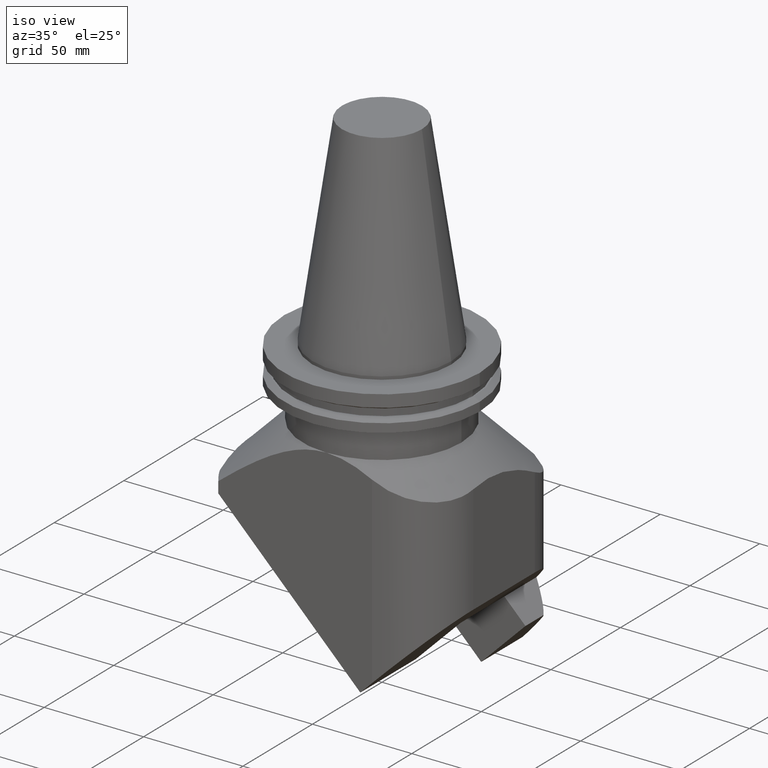
[diagram: clean part render]
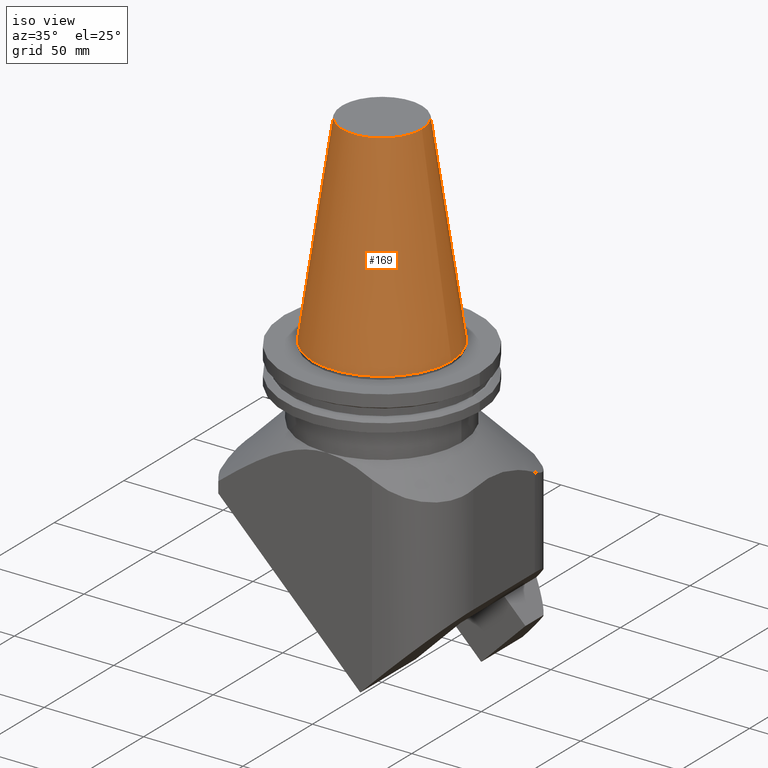
[diagram: tour spotlight — one face highlighted and labeled with its STEP entity id]
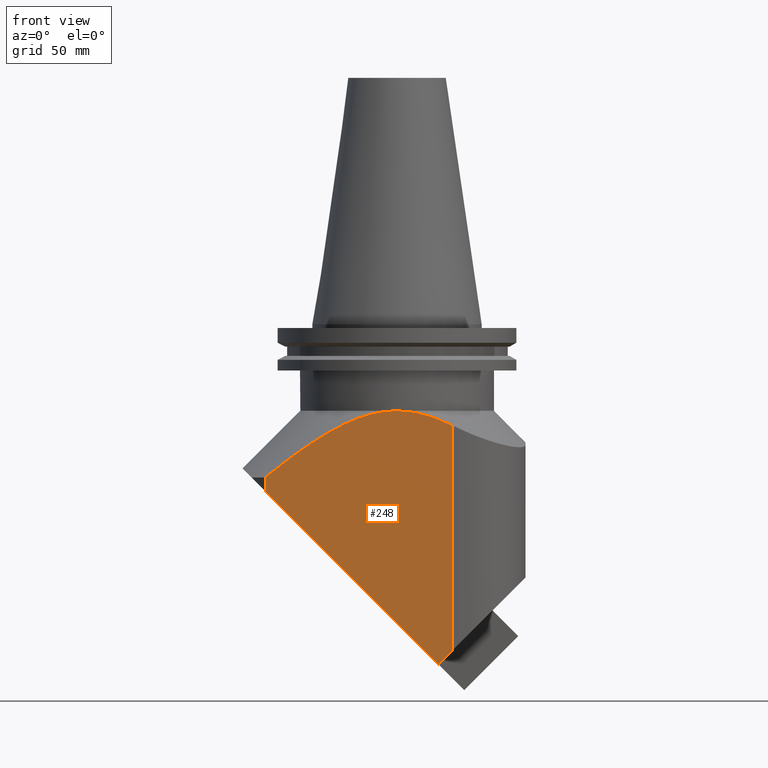
[diagram: tour spotlight — one face highlighted and labeled with its STEP entity id]
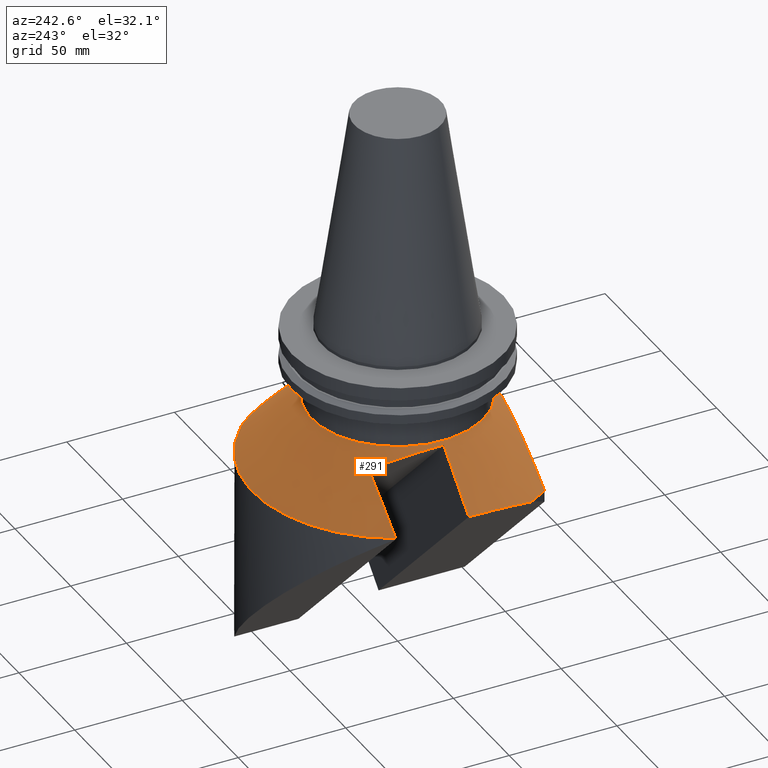
[diagram: tour spotlight — one face highlighted and labeled with its STEP entity id]
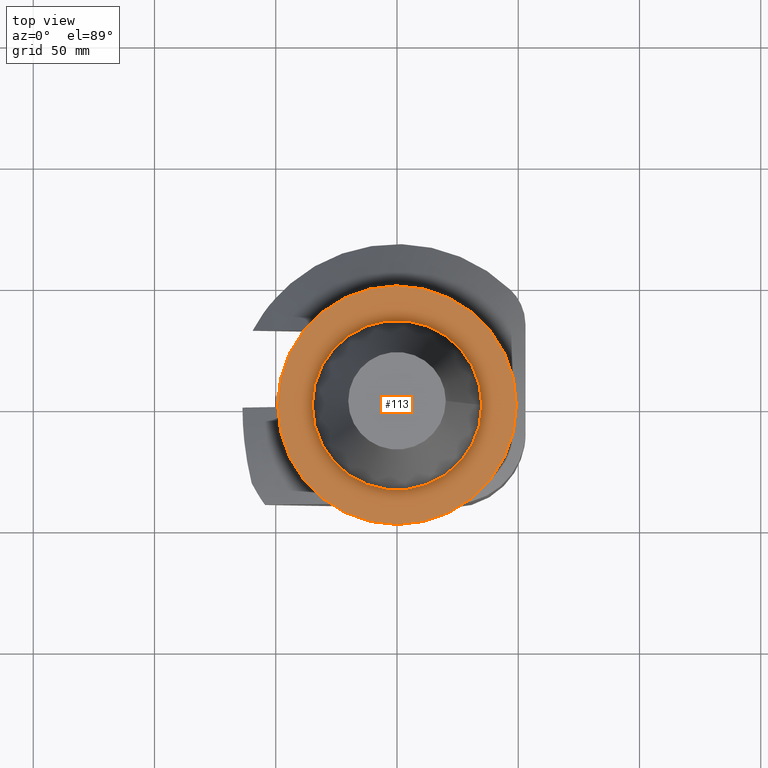
[diagram: tour spotlight — one face highlighted and labeled with its STEP entity id]
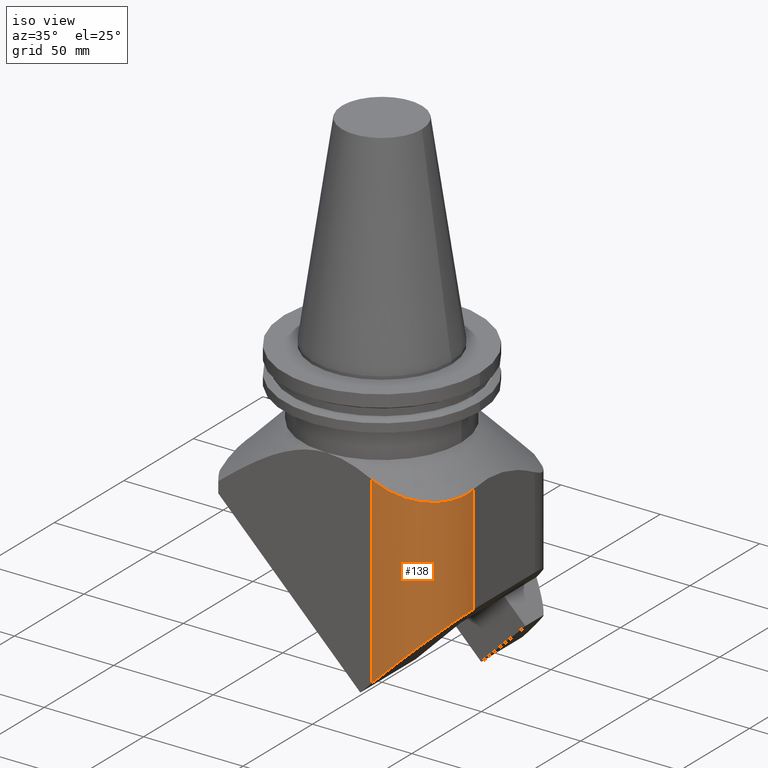
[diagram: tour spotlight — one face highlighted and labeled with its STEP entity id]
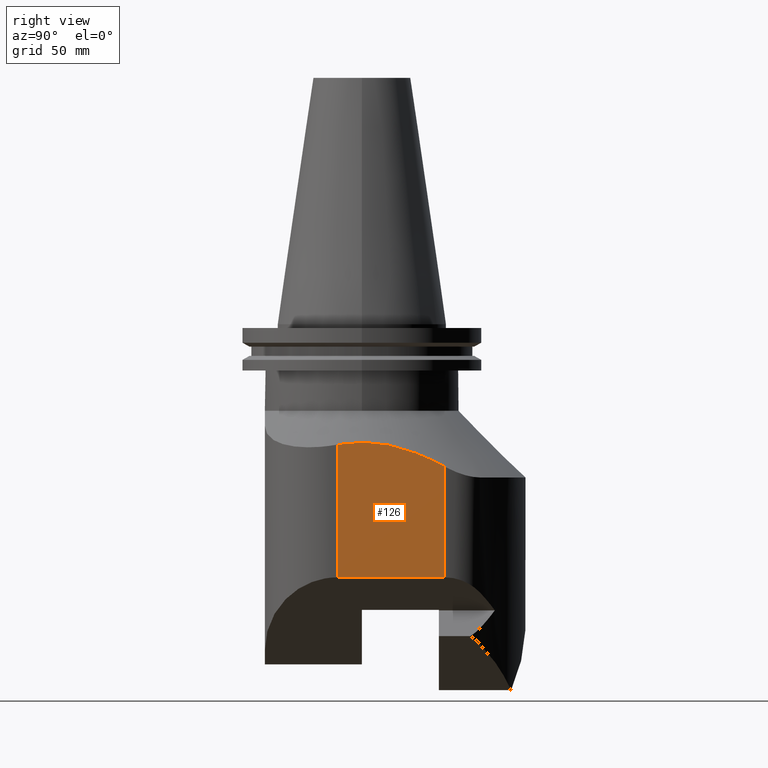
[diagram: tour spotlight — one face highlighted and labeled with its STEP entity id]
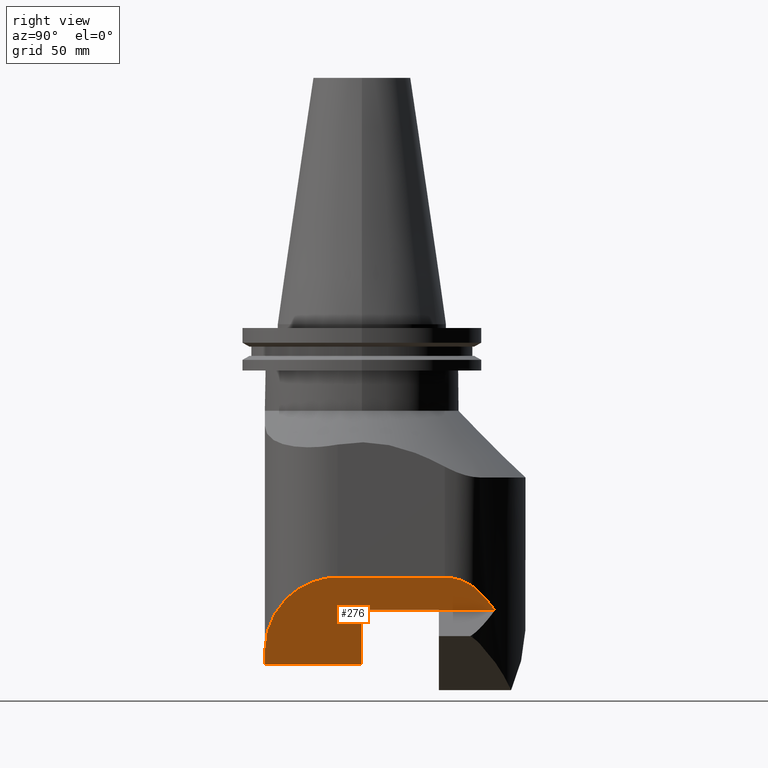
[diagram: tour spotlight — one face highlighted and labeled with its STEP entity id]
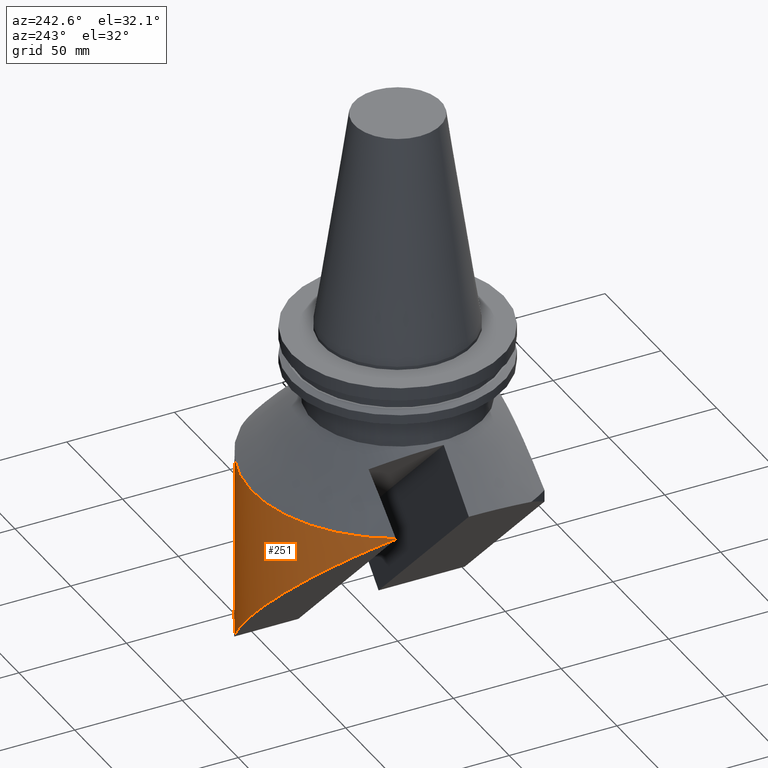
[diagram: tour spotlight — one face highlighted and labeled with its STEP entity id]
A machine part: a face-by-face anatomy tour. The part has 29 B-rep faces; the first image is the clean iso view, then the 8 largest visible faces are spotlighted one at a time (largest first), each with its STEP entity span.

Face 1 — iso view, entity #169. In plain terms, the highlighted conical surface has half-angle 8.297 deg.
Definition (entity closure, byte-faithful):
#169=ADVANCED_FACE('Unnamed[1]',(#422,#423),#424,.T.);
#198=EDGE_CURVE('Unnamed[1]',#464,#464,#465,.T.);
#225=EDGE_CURVE('Unnamed[1]',#501,#501,#502,.T.);
#422=FACE_BOUND('',#779,.T.);
#423=FACE_BOUND('',#780,.T.);
#424=CONICAL_SURFACE('',#781,27.5166666648608,0.144812498273746);
#464=VERTEX_POINT('',#840);
#465=CIRCLE('',#841,20.1083333297217);
#501=VERTEX_POINT('',#893);
#502=CIRCLE('',#894,34.925);
#779=EDGE_LOOP('',(#1192));
#780=EDGE_LOOP('',(#1193));
#781=AXIS2_PLACEMENT_3D('',#1194,#1195,#1196);
#840=CARTESIAN_POINT('',(20.1083333297217,1.36298380005854E-014,101.6));
#841=AXIS2_PLACEMENT_3D('',#1236,#1237,#1238);
#893=CARTESIAN_POINT('',(34.925,-1.55098156540134E-014,4.27707894602213E-015));
#894=AXIS2_PLACEMENT_3D('',#1278,#1279,#1280);
#1192=ORIENTED_EDGE('',*,*,#225,.F.);
#1193=ORIENTED_EDGE('',*,*,#198,.T.);
#1194=CARTESIAN_POINT('',(-6.22120573966854E-015,1.12798659301916E-014,50.8));
#1195=DIRECTION('',(1.22464679914735E-016,-2.22044604925031E-016,-1.0));
#1196=DIRECTION('',(1.0,-4.44089209850063E-016,1.22464679914735E-016));
#1236=CARTESIAN_POINT('',(-1.24424114793371E-014,2.25597318603832E-014,101.6));
#1237=DIRECTION('',(1.22464679914735E-016,-2.22044604925031E-016,-1.0));
#1238=DIRECTION('',(1.0,-4.44089209850063E-016,1.22464679914735E-016));
#1278=CARTESIAN_POINT('',(0.0,0.0,0.0));
#1279=DIRECTION('',(1.22464679914735E-016,-2.22044604925031E-016,-1.0));
#1280=DIRECTION('',(1.0,-4.44089209850063E-016,1.22464679914735E-016));

Face 2 — front view, entity #248. In plain terms, the highlighted planar face has unit normal (-0, 1, -0).
Definition (entity closure, byte-faithful):
#161=EDGE_CURVE('Unnamed[1]',#404,#411,#412,.T.);
#200=EDGE_CURVE('Unnamed[1]',#426,#467,#468,.T.);
#208=EDGE_CURVE('Unnamed[1]',#479,#404,#480,.T.);
#241=EDGE_CURVE('Unnamed[1]',#479,#426,#524,.T.);
#243=EDGE_CURVE('Unnamed[1]',#467,#328,#526,.T.);
#248=ADVANCED_FACE('Unnamed[1]',(#532),#533,.F.);
#310=EDGE_CURVE('Unnamed[1]',#411,#328,#610,.T.);
#328=VERTEX_POINT('',#619);
#404=VERTEX_POINT('',#744);
#411=VERTEX_POINT('',#753);
#412=(B_SPLINE_CURVE(2,(#755,#756,#757,#758,#759),.UNSPECIFIED.,.F.,.F.)B_SPLINE_CURVE_WITH_KNOTS((3,2,3),(0.0,61.7520881841172,123.504176368234),.UNSPECIFIED.)RATIONAL_B_SPLINE_CURVE((1.0,1.15920231193658,1.0,1.15920231193658,1.0))BOUNDED_CURVE()REPRESENTATION_ITEM('')GEOMETRIC_REPRESENTATION_ITEM()CURVE());
#426=VERTEX_POINT('',#784);
#467=VERTEX_POINT('',#844);
#468=LINE('',#845,#846);
#479=VERTEX_POINT('',#860);
#480=LINE('',#861,#862);
#524=LINE('',#932,#933);
#526=LINE('',#936,#937);
#532=FACE_OUTER_BOUND('',#945,.T.);
#533=PLANE('',#946);
#610=(B_SPLINE_CURVE(2,(#1087,#1088,#1089,#1090,#1091),.UNSPECIFIED.,.F.,.F.)B_SPLINE_CURVE_WITH_KNOTS((3,2,3),(0.0,61.7520881841172,123.504176368234),.UNSPECIFIED.)RATIONAL_B_SPLINE_CURVE((1.0,1.15920231193658,1.0,1.15920231193658,1.0))BOUNDED_CURVE()REPRESENTATION_ITEM('')GEOMETRIC_REPRESENTATION_ITEM()CURVE());
#619=CARTESIAN_POINT('',(22.9999999999964,-40.0000000000012,-41.7911103010472));
#744=CARTESIAN_POINT('',(-54.3714079273313,-40.0000000000015,-63.1500223208141));
#753=CARTESIAN_POINT('',(1.33151739428989E-013,-40.0000000000013,-35.6500223208098));
#755=CARTESIAN_POINT('',(-54.3714079273285,-40.0000000000015,-63.1500223208119));
#756=CARTESIAN_POINT('',(-20.2312215543526,-40.0000000000014,-35.6500223208098));
#757=CARTESIAN_POINT('',(1.33668122231138E-013,-40.0000000000013,-35.6500223208098));
#758=CARTESIAN_POINT('',(20.2312215543529,-40.0000000000012,-35.6500223208098));
#759=CARTESIAN_POINT('',(54.3714079273287,-40.0000000000011,-63.1500223208119));
#784=CARTESIAN_POINT('',(17.1119841047162,-40.0,-140.227735178066));
#844=CARTESIAN_POINT('',(22.999999999996,-40.0,-134.339719282784));
#845=CARTESIAN_POINT('',(-23.6354055024403,-40.0,-180.975124785233));
#846=VECTOR('',#1239,1.0);
#860=CARTESIAN_POINT('',(-54.3714079273291,-40.0000000000015,-68.744343146019));
#861=CARTESIAN_POINT('',(-54.3714079273291,-40.0000000000015,-107.275011160406));
#862=VECTOR('',#1255,1.0);
#932=CARTESIAN_POINT('',(29.469433888729,-40.0000000000012,-152.585184962079));
#933=VECTOR('',#1302,1.0);
#936=CARTESIAN_POINT('',(22.9999999999964,-40.0000000000013,-292.69346914569));
#937=VECTOR('',#1303,1.0);
#945=EDGE_LOOP('',(#1308,#1309,#1310,#1311,#1312,#1313));
#946=AXIS2_PLACEMENT_3D('',#1314,#1315,#1316);
#1087=CARTESIAN_POINT('',(-54.3714079273285,-40.0000000000015,-63.1500223208119));
#1088=CARTESIAN_POINT('',(-20.2312215543526,-40.0000000000014,-35.6500223208098));
#1089=CARTESIAN_POINT('',(1.33668122231138E-013,-40.0000000000013,-35.6500223208098));
#1090=CARTESIAN_POINT('',(20.2312215543529,-40.0000000000012,-35.6500223208098));
#1091=CARTESIAN_POINT('',(54.3714079273287,-40.0000000000011,-63.1500223208119));
#1239=DIRECTION('',(0.707106781186455,2.44048561812928E-015,0.70710678118664));
#1255=DIRECTION('',(-1.22464679914735E-016,2.22044604925031E-016,1.0));
#1302=DIRECTION('',(0.70710678118654,2.12646712639278E-015,-0.707106781186555));
#1303=DIRECTION('',(-1.22464679914735E-016,2.22044604925031E-016,1.0));
#1308=ORIENTED_EDGE('',*,*,#200,.T.);
#1309=ORIENTED_EDGE('',*,*,#243,.T.);
#1310=ORIENTED_EDGE('',*,*,#310,.F.);
#1311=ORIENTED_EDGE('',*,*,#161,.F.);
#1312=ORIENTED_EDGE('',*,*,#208,.F.);
#1313=ORIENTED_EDGE('',*,*,#241,.T.);
#1314=CARTESIAN_POINT('',(-15.6857039636674,-40.0000000000014,-292.69346914569));
#1315=DIRECTION('',(-3.22932325501028E-015,1.0,-2.22044604925032E-016));
#1316=DIRECTION('',(-1.0,-3.22932325501028E-015,-1.22464679914734E-016));

Face 3 — auxiliary view, entity #291. In plain terms, the highlighted conical surface has half-angle 45 deg.
Definition (entity closure, byte-faithful):
#110=EDGE_CURVE('Unnamed[1]',#328,#329,#330,.T.);
#157=EDGE_CURVE('Unnamed[1]',#404,#405,#406,.T.);
#161=EDGE_CURVE('Unnamed[1]',#404,#411,#412,.T.);
#217=EDGE_CURVE('Unnamed[1]',#411,#411,#491,.T.);
#234=EDGE_CURVE('Unnamed[1]',#329,#386,#514,.T.);
#236=EDGE_CURVE('Unnamed[1]',#370,#516,#517,.T.);
#253=EDGE_CURVE('Unnamed[1]',#418,#365,#539,.T.);
#264=EDGE_CURVE('Unnamed[1]',#365,#405,#554,.T.);
#270=EDGE_CURVE('Unnamed[1]',#386,#516,#560,.T.);
#281=EDGE_CURVE('Unnamed[1]',#370,#498,#575,.T.);
#291=ADVANCED_FACE('Unnamed[1]',(#587),#588,.T.);
#305=EDGE_CURVE('Unnamed[1]',#498,#418,#605,.T.);
#310=EDGE_CURVE('Unnamed[1]',#411,#328,#610,.T.);
#328=VERTEX_POINT('',#619);
#329=VERTEX_POINT('',#620);
#330=B_SPLINE_CURVE_WITH_KNOTS('',3,(#621,#622,#623,#624,#625,#626,#627,#628,#629,#630,#631,#632,#633,#634,#635,#636,#637,#638,#639,#640,#641,#642,#643,#644,#645,#646),.UNSPECIFIED.,.F.,.F.,(4,2,2,2,2,2,2,2,2,2,2,2,4),(9.54781943589006,14.3217291538351,19.0956388717801,23.4031082217474,27.7105775717147,32.0180469216819,36.3255162716492,40.461743414371,44.5979705570927,48.7341976998145,52.8704248425363,57.122659954357,61.3748950661777),.UNSPECIFIED.);
#365=VERTEX_POINT('',#692);
#370=VERTEX_POINT('',#699);
#386=VERTEX_POINT('',#720);
#404=VERTEX_POINT('',#744);
#405=VERTEX_POINT('',#745);
#406=CIRCLE('',#746,67.5000000000005);
#411=VERTEX_POINT('',#753);
#412=(B_SPLINE_CURVE(2,(#755,#756,#757,#758,#759),.UNSPECIFIED.,.F.,.F.)B_SPLINE_CURVE_WITH_KNOTS((3,2,3),(0.0,61.7520881841172,123.504176368234),.UNSPECIFIED.)RATIONAL_B_SPLINE_CURVE((1.0,1.15920231193658,1.0,1.15920231193658,1.0))BOUNDED_CURVE()REPRESENTATION_ITEM('')GEOMETRIC_REPRESENTATION_ITEM()CURVE());
#418=VERTEX_POINT('',#773);
#491=CIRCLE('',#878,39.9999999999994);
#498=VERTEX_POINT('',#888);
#514=(B_SPLINE_CURVE(2,(#911,#912,#913),.UNSPECIFIED.,.F.,.F.)B_SPLINE_CURVE_WITH_KNOTS((3,3),(0.0,88.4872872225271),.UNSPECIFIED.)RATIONAL_B_SPLINE_CURVE((1.0,1.27358490566046,1.0))BOUNDED_CURVE()REPRESENTATION_ITEM('')GEOMETRIC_REPRESENTATION_ITEM()CURVE());
#516=VERTEX_POINT('',#922);
#517=CIRCLE('',#923,67.5000000000005);
#539=LINE('',#954,#955);
#554=B_SPLINE_CURVE_WITH_KNOTS('',2,(#977,#978,#979,#980,#981),.UNSPECIFIED.,.F.,.F.,(3,2,3),(0.0,31.5550764550612,63.1101529101225),.UNSPECIFIED.);
#560=B_SPLINE_CURVE_WITH_KNOTS('',3,(#991,#992,#993,#994,#995,#996,#997,#998,#999,#1000,#1001,#1002,#1003,#1004,#1005,#1006,#1007,#1008),.UNSPECIFIED.,.F.,.F.,(4,2,2,2,2,2,2,2,4),(33.8615846986564,36.6262170531515,39.3908494076466,42.1554817621417,44.4878852802522,46.8202887983627,49.1526923164732,51.4850958345838,53.8174993526943),.UNSPECIFIED.);
#575=(B_SPLINE_CURVE(2,(#1028,#1029,#1030),.UNSPECIFIED.,.F.,.F.)B_SPLINE_CURVE_WITH_KNOTS((3,3),(0.0,44.7367097655796),.UNSPECIFIED.)RATIONAL_B_SPLINE_CURVE((1.0,1.05847940210861,1.0))BOUNDED_CURVE()REPRESENTATION_ITEM('')GEOMETRIC_REPRESENTATION_ITEM()CURVE());
#587=FACE_OUTER_BOUND('',#1053,.T.);
#588=CONICAL_SURFACE('',#1054,53.75,0.785398163397432);
#605=B_SPLINE_CURVE_WITH_KNOTS('',2,(#1078,#1079,#1080),.UNSPECIFIED.,.F.,.F.,(3,3),(0.0,151.051518331665),.UNSPECIFIED.);
#610=(B_SPLINE_CURVE(2,(#1087,#1088,#1089,#1090,#1091),.UNSPECIFIED.,.F.,.F.)B_SPLINE_CURVE_WITH_KNOTS((3,2,3),(0.0,61.7520881841172,123.504176368234),.UNSPECIFIED.)RATIONAL_B_SPLINE_CURVE((1.0,1.15920231193658,1.0,1.15920231193658,1.0))BOUNDED_CURVE()REPRESENTATION_ITEM('')GEOMETRIC_REPRESENTATION_ITEM()CURVE());
#619=CARTESIAN_POINT('',(22.9999999999964,-40.0000000000012,-41.7911103010472));
#620=CARTESIAN_POINT('',(52.9999999999972,-10.0000000000001,-49.5851685614553));
#621=CARTESIAN_POINT('',(19.207626039832,-39.7593329855752,-39.8058538444483));
#622=CARTESIAN_POINT('',(20.7064239775778,-39.9503313962158,-40.6298068494797));
#623=CARTESIAN_POINT('',(22.2366164881688,-40.0285962871415,-41.421257543371));
#624=CARTESIAN_POINT('',(25.2683833375197,-39.952525539021,-42.9040785893823));
#625=CARTESIAN_POINT('',(26.7699085963871,-39.7980540244764,-43.5955423143632));
#626=CARTESIAN_POINT('',(29.5080376891774,-39.3152626960263,-44.7926453088469));
#627=CARTESIAN_POINT('',(30.8598070191423,-38.9872169537476,-45.354960983115));
#628=CARTESIAN_POINT('',(33.5750798604371,-38.110549602722,-46.4235403304722));
#629=CARTESIAN_POINT('',(34.938522446075,-37.5618162643592,-46.9298671482638));
#630=CARTESIAN_POINT('',(37.5884384242237,-36.2556562421189,-47.8553421321913));
#631=CARTESIAN_POINT('',(38.8761401134722,-35.4975069594772,-48.2749943461305));
#632=CARTESIAN_POINT('',(41.3002727849779,-33.8175293012252,-49.0101031901576));
#633=CARTESIAN_POINT('',(42.4366462971505,-32.8956320488573,-49.325591926275));
#634=CARTESIAN_POINT('',(44.4598921072614,-31.0074008377407,-49.8382694324193));
#635=CARTESIAN_POINT('',(45.4330716546015,-29.9713461797309,-50.0593919422368));
#636=CARTESIAN_POINT('',(47.2524827559952,-27.7176311130367,-50.4131313626686));
#637=CARTESIAN_POINT('',(48.0986723845095,-26.4999423146153,-50.5457830346636));
#638=CARTESIAN_POINT('',(49.6011711667879,-23.9488044045983,-50.7103231746924));
#639=CARTESIAN_POINT('',(50.2583098023384,-22.613903426492,-50.7423139882512));
#640=CARTESIAN_POINT('',(51.3530857281094,-19.9110313604386,-50.7087441769773));
#641=CARTESIAN_POINT('',(51.790728485604,-18.5430627189798,-50.6431648743854));
#642=CARTESIAN_POINT('',(52.460664861007,-15.8366681502117,-50.4308176180719));
#643=CARTESIAN_POINT('',(52.7141662726592,-14.3897969314763,-50.2732033613164));
#644=CARTESIAN_POINT('',(53.0023317264845,-11.4359962949925,-49.8521579349298));
#645=CARTESIAN_POINT('',(53.0370536106308,-9.92907373928706,-49.5887182147199));
#646=CARTESIAN_POINT('',(52.9593035033703,-8.43790730340115,-49.2773111504998));
#692=CARTESIAN_POINT('',(-63.732864376269,1.68427929798465E-014,-59.3828866970796));
#699=CARTESIAN_POINT('',(-59.5666643350123,31.7500000000007,-63.1500223208119));
#720=CARTESIAN_POINT('',(52.9999999999967,34.1650406117131,-58.7075357510096));
#744=CARTESIAN_POINT('',(-54.3714079273313,-40.0000000000015,-63.1500223208141));
#745=CARTESIAN_POINT('',(-59.9657287525361,-30.9896978878035,-63.1500223208119));
#746=AXIS2_PLACEMENT_3D('',#1177,#1178,#1179);
#753=CARTESIAN_POINT('',(1.33151739428989E-013,-40.0000000000013,-35.6500223208098));
#755=CARTESIAN_POINT('',(-54.3714079273285,-40.0000000000015,-63.1500223208119));
#756=CARTESIAN_POINT('',(-20.2312215543526,-40.0000000000014,-35.6500223208098));
#757=CARTESIAN_POINT('',(1.33668122231138E-013,-40.0000000000013,-35.6500223208098));
#758=CARTESIAN_POINT('',(20.2312215543529,-40.0000000000012,-35.6500223208098));
#759=CARTESIAN_POINT('',(54.3714079273287,-40.0000000000011,-63.1500223208119));
#773=CARTESIAN_POINT('',(-41.2822240735965,-1.04459609606118E-012,-36.932246394407));
#878=AXIS2_PLACEMENT_3D('',#1268,#1269,#1270);
#888=CARTESIAN_POINT('',(-35.1775233057616,31.7500000000007,-43.0369471622418));
#911=CARTESIAN_POINT('',(52.9999999999975,-41.8001196170578,-63.1500223208119));
#912=CARTESIAN_POINT('',(52.9999999999971,5.8280828227106E-013,-37.2648371356203));
#913=CARTESIAN_POINT('',(52.9999999999966,41.8001196170589,-63.1500223208119));
#922=CARTESIAN_POINT('',(46.8947368421025,48.5503208692755,-63.1500223208088));
#923=AXIS2_PLACEMENT_3D('',#1293,#1294,#1295);
#954=CARTESIAN_POINT('',(-53.75,-1.03066689038608E-012,-49.4000223208108));
#955=VECTOR('',#1329,1.0);
#977=CARTESIAN_POINT('',(-59.9654163588133,30.9909827879724,-63.1503347145347));
#978=CARTESIAN_POINT('',(-63.732864376269,15.4954913939836,-59.3828866970789));
#979=CARTESIAN_POINT('',(-63.732864376269,1.51174277663777E-014,-59.3828866970789));
#980=CARTESIAN_POINT('',(-63.732864376269,-15.4954913939836,-59.3828866970789));
#981=CARTESIAN_POINT('',(-59.9654163588134,-30.9909827879724,-63.1503347145347));
#991=CARTESIAN_POINT('',(52.9384449642205,32.5971080849063,-57.8195519211617));
#992=CARTESIAN_POINT('',(53.0047010249631,33.4396461431362,-58.3177348280299));
#993=CARTESIAN_POINT('',(53.0191582135871,34.3163819377878,-58.8011154799722));
#994=CARTESIAN_POINT('',(52.9268568681809,36.0911686805138,-59.7065598123895));
#995=CARTESIAN_POINT('',(52.8199430981926,36.9898896807149,-60.1289607609384));
#996=CARTESIAN_POINT('',(52.4861331436585,38.7585721253764,-60.8907784511055));
#997=CARTESIAN_POINT('',(52.2591309443455,39.6285171492122,-61.2301868589596));
#998=CARTESIAN_POINT('',(51.7521765976405,41.1578542925898,-61.7694148479308));
#999=CARTESIAN_POINT('',(51.4681572755128,41.8829953712902,-62.0018029062934));
#1000=CARTESIAN_POINT('',(50.7928987299387,43.3330509524495,-62.4113444953499));
#1001=CARTESIAN_POINT('',(50.4015798748152,44.0579345152886,-62.5884762706338));
#1002=CARTESIAN_POINT('',(49.5251537848692,45.4612180229533,-62.8720348693524));
#1003=CARTESIAN_POINT('',(49.0395786077385,46.1402698471498,-62.9785853848156));
#1004=CARTESIAN_POINT('',(48.0039747206371,47.4147553157153,-63.1175792893273));
#1005=CARTESIAN_POINT('',(47.453941480131,48.0101853177135,-63.1500223208086));
#1006=CARTESIAN_POINT('',(46.3355322040728,49.0904564208383,-63.1500223208086));
#1007=CARTESIAN_POINT('',(45.7213844570369,49.6195084010367,-63.1175792893273));
#1008=CARTESIAN_POINT('',(45.0665669593136,50.1148983482667,-63.0480823370714));
#1028=CARTESIAN_POINT('',(-59.5670183343954,31.7500000000007,-63.1503347145347));
#1029=CARTESIAN_POINT('',(-37.4412634747889,31.7500000000007,-43.6250140360616));
#1030=CARTESIAN_POINT('',(-24.3297657202017,31.7500000000007,-35.6500223208098));
#1053=EDGE_LOOP('',(#1390,#1391,#1392,#1393,#1394,#1395,#1396,#1397,#1398,#1399,#1400,#1401));
#1054=AXIS2_PLACEMENT_3D('',#1402,#1403,#1404);
#1078=CARTESIAN_POINT('',(-15.0641357534687,65.7979026052601,-63.1503347145347));
#1079=CARTESIAN_POINT('',(-67.5003123937247,6.85560066696044E-014,-10.7141580742787));
#1080=CARTESIAN_POINT('',(-15.0641357534689,-65.7979026052602,-63.1503347145346));
#1087=CARTESIAN_POINT('',(-54.3714079273285,-40.0000000000015,-63.1500223208119));
#1088=CARTESIAN_POINT('',(-20.2312215543526,-40.0000000000014,-35.6500223208098));
#1089=CARTESIAN_POINT('',(1.33668122231138E-013,-40.0000000000013,-35.6500223208098));
#1090=CARTESIAN_POINT('',(20.2312215543529,-40.0000000000012,-35.6500223208098));
#1091=CARTESIAN_POINT('',(54.3714079273287,-40.0000000000011,-63.1500223208119));
#1177=CARTESIAN_POINT('',(7.73364727012661E-015,-1.40221217572316E-014,-63.1500223208119));
#1178=DIRECTION('',(1.22464679914735E-016,-2.22044604925031E-016,-1.0));
#1179=DIRECTION('',(1.0,-4.44089209850063E-016,1.22464679914735E-016));
#1268=CARTESIAN_POINT('',(4.36586857247113E-015,-7.91589512179276E-015,-35.6500223208098));
#1269=DIRECTION('',(1.22464679914735E-016,-2.22044604925031E-016,-1.0));
#1270=DIRECTION('',(1.0,-4.44089209850063E-016,1.22464679914735E-016));
#1293=CARTESIAN_POINT('',(7.73364727012661E-015,-1.40221217572316E-014,-63.1500223208119));
#1294=DIRECTION('',(1.22464679914735E-016,-2.22044604925031E-016,-1.0));
#1295=DIRECTION('',(1.0,-4.44089209850063E-016,1.22464679914735E-016));
#1329=DIRECTION('',(-0.707106781186536,7.89991402440261E-016,-0.707106781186559));
#1390=ORIENTED_EDGE('',*,*,#253,.T.);
#1391=ORIENTED_EDGE('',*,*,#264,.T.);
#1392=ORIENTED_EDGE('',*,*,#157,.F.);
#1393=ORIENTED_EDGE('',*,*,#161,.T.);
#1394=ORIENTED_EDGE('',*,*,#217,.T.);
#1395=ORIENTED_EDGE('',*,*,#310,.T.);
#1396=ORIENTED_EDGE('',*,*,#110,.T.);
#1397=ORIENTED_EDGE('',*,*,#234,.T.);
#1398=ORIENTED_EDGE('',*,*,#270,.T.);
#1399=ORIENTED_EDGE('',*,*,#236,.F.);
#1400=ORIENTED_EDGE('',*,*,#281,.T.);
#1401=ORIENTED_EDGE('',*,*,#305,.T.);
#1402=CARTESIAN_POINT('',(6.04975792129887E-015,-1.09690084395122E-014,-49.4000223208108));
#1403=DIRECTION('',(1.22464679914735E-016,-2.22044604925031E-016,-1.0));
#1404=DIRECTION('',(1.0,-4.44089209850063E-016,1.22464679914735E-016));

Face 4 — top view, entity #113. In plain terms, the highlighted planar face has unit normal (-0, 0, 1).
Definition (entity closure, byte-faithful):
#113=ADVANCED_FACE('Unnamed[1]',(#333,#334),#335,.T.);
#182=EDGE_CURVE('Unnamed[1]',#442,#442,#443,.T.);
#260=EDGE_CURVE('Unnamed[1]',#548,#548,#549,.T.);
#333=FACE_OUTER_BOUND('',#650,.T.);
#334=FACE_BOUND('',#651,.T.);
#335=PLANE('',#652);
#442=VERTEX_POINT('',#808);
#443=CIRCLE('',#809,49.2125);
#548=VERTEX_POINT('',#968);
#549=CIRCLE('',#969,34.925);
#650=EDGE_LOOP('',(#1100));
#651=EDGE_LOOP('',(#1101));
#652=AXIS2_PLACEMENT_3D('',#1102,#1103,#1104);
#808=CARTESIAN_POINT('',(49.2125,-2.21878071471337E-014,-1.49999999999999));
#809=AXIS2_PLACEMENT_3D('',#1211,#1212,#1213);
#968=CARTESIAN_POINT('',(34.925,-1.5842882561401E-014,-1.5));
#969=AXIS2_PLACEMENT_3D('',#1337,#1338,#1339);
#1100=ORIENTED_EDGE('',*,*,#182,.F.);
#1101=ORIENTED_EDGE('',*,*,#260,.T.);
#1102=CARTESIAN_POINT('',(42.06875,-1.90153448542674E-014,-1.49999999999999));
#1103=DIRECTION('',(-1.22464679914735E-016,2.22044604925031E-016,1.0));
#1104=DIRECTION('',(-1.0,4.44089209850063E-016,-1.22464679914735E-016));
#1211=CARTESIAN_POINT('',(1.83697019872103E-016,-3.33066907387547E-016,-1.5));
#1212=DIRECTION('',(1.22464679914735E-016,-2.22044604925031E-016,-1.0));
#1213=DIRECTION('',(1.0,-4.44089209850063E-016,1.22464679914735E-016));
#1337=CARTESIAN_POINT('',(1.83697019872103E-016,-3.33066907387547E-016,-1.5));
#1338=DIRECTION('',(1.22464679914735E-016,-2.22044604925031E-016,-1.0));
#1339=DIRECTION('',(1.0,-4.44089209850063E-016,1.22464679914735E-016));

Face 5 — iso view, entity #138. In plain terms, the highlighted cylindrical surface (partial cylindrical patch) has radius 30 mm, axis along (-0, 0, 1).
Definition (entity closure, byte-faithful):
#110=EDGE_CURVE('Unnamed[1]',#328,#329,#330,.T.);
#138=ADVANCED_FACE('Unnamed[1]',(#374),#375,.T.);
#213=EDGE_CURVE('Unnamed[1]',#429,#329,#486,.T.);
#243=EDGE_CURVE('Unnamed[1]',#467,#328,#526,.T.);
#293=EDGE_CURVE('Unnamed[1]',#467,#429,#590,.T.);
#328=VERTEX_POINT('',#619);
#329=VERTEX_POINT('',#620);
#330=B_SPLINE_CURVE_WITH_KNOTS('',3,(#621,#622,#623,#624,#625,#626,#627,#628,#629,#630,#631,#632,#633,#634,#635,#636,#637,#638,#639,#640,#641,#642,#643,#644,#645,#646),.UNSPECIFIED.,.F.,.F.,(4,2,2,2,2,2,2,2,2,2,2,2,4),(9.54781943589006,14.3217291538351,19.0956388717801,23.4031082217474,27.7105775717147,32.0180469216819,36.3255162716492,40.461743414371,44.5979705570927,48.7341976998145,52.8704248425363,57.122659954357,61.3748950661777),.UNSPECIFIED.);
#374=FACE_OUTER_BOUND('',#705,.T.);
#375=CYLINDRICAL_SURFACE('',#706,30.0000000000011);
#429=VERTEX_POINT('',#789);
#467=VERTEX_POINT('',#844);
#486=LINE('',#870,#871);
#526=LINE('',#936,#937);
#590=ELLIPSE('',#1057,42.4264068711999,30.0000000000011);
#619=CARTESIAN_POINT('',(22.9999999999964,-40.0000000000012,-41.7911103010472));
#620=CARTESIAN_POINT('',(52.9999999999972,-10.0000000000001,-49.5851685614553));
#621=CARTESIAN_POINT('',(19.207626039832,-39.7593329855752,-39.8058538444483));
#622=CARTESIAN_POINT('',(20.7064239775778,-39.9503313962158,-40.6298068494797));
#623=CARTESIAN_POINT('',(22.2366164881688,-40.0285962871415,-41.421257543371));
#624=CARTESIAN_POINT('',(25.2683833375197,-39.952525539021,-42.9040785893823));
#625=CARTESIAN_POINT('',(26.7699085963871,-39.7980540244764,-43.5955423143632));
#626=CARTESIAN_POINT('',(29.5080376891774,-39.3152626960263,-44.7926453088469));
#627=CARTESIAN_POINT('',(30.8598070191423,-38.9872169537476,-45.354960983115));
#628=CARTESIAN_POINT('',(33.5750798604371,-38.110549602722,-46.4235403304722));
#629=CARTESIAN_POINT('',(34.938522446075,-37.5618162643592,-46.9298671482638));
#630=CARTESIAN_POINT('',(37.5884384242237,-36.2556562421189,-47.8553421321913));
#631=CARTESIAN_POINT('',(38.8761401134722,-35.4975069594772,-48.2749943461305));
#632=CARTESIAN_POINT('',(41.3002727849779,-33.8175293012252,-49.0101031901576));
#633=CARTESIAN_POINT('',(42.4366462971505,-32.8956320488573,-49.325591926275));
#634=CARTESIAN_POINT('',(44.4598921072614,-31.0074008377407,-49.8382694324193));
#635=CARTESIAN_POINT('',(45.4330716546015,-29.9713461797309,-50.0593919422368));
#636=CARTESIAN_POINT('',(47.2524827559952,-27.7176311130367,-50.4131313626686));
#637=CARTESIAN_POINT('',(48.0986723845095,-26.4999423146153,-50.5457830346636));
#638=CARTESIAN_POINT('',(49.6011711667879,-23.9488044045983,-50.7103231746924));
#639=CARTESIAN_POINT('',(50.2583098023384,-22.613903426492,-50.7423139882512));
#640=CARTESIAN_POINT('',(51.3530857281094,-19.9110313604386,-50.7087441769773));
#641=CARTESIAN_POINT('',(51.790728485604,-18.5430627189798,-50.6431648743854));
#642=CARTESIAN_POINT('',(52.460664861007,-15.8366681502117,-50.4308176180719));
#643=CARTESIAN_POINT('',(52.7141662726592,-14.3897969314763,-50.2732033613164));
#644=CARTESIAN_POINT('',(53.0023317264845,-11.4359962949925,-49.8521579349298));
#645=CARTESIAN_POINT('',(53.0370536106308,-9.92907373928706,-49.5887182147199));
#646=CARTESIAN_POINT('',(52.9593035033703,-8.43790730340115,-49.2773111504998));
#705=EDGE_LOOP('',(#1142,#1143,#1144,#1145));
#706=AXIS2_PLACEMENT_3D('',#1146,#1147,#1148);
#789=CARTESIAN_POINT('',(52.9999999999972,-10.0000000000002,-104.339719282775));
#844=CARTESIAN_POINT('',(22.999999999996,-40.0,-134.339719282784));
#870=CARTESIAN_POINT('',(52.9999999999972,-10.0000000000002,-292.69346914569));
#871=VECTOR('',#1264,1.0);
#936=CARTESIAN_POINT('',(22.9999999999964,-40.0000000000013,-292.69346914569));
#937=VECTOR('',#1303,1.0);
#1057=AXIS2_PLACEMENT_3D('',#1405,#1406,#1407);
#1142=ORIENTED_EDGE('',*,*,#293,.T.);
#1143=ORIENTED_EDGE('',*,*,#213,.T.);
#1144=ORIENTED_EDGE('',*,*,#110,.F.);
#1145=ORIENTED_EDGE('',*,*,#243,.F.);
#1146=CARTESIAN_POINT('',(22.999999999996,-10.0000000000002,-292.69346914569));
#1147=DIRECTION('',(-1.22464679914735E-016,2.22044604925031E-016,1.0));
#1148=DIRECTION('',(5.66553889764798E-016,1.0,-2.22044604925031E-016));
#1264=DIRECTION('',(-1.22464679914735E-016,2.22044604925031E-016,1.0));
#1303=DIRECTION('',(-1.22464679914735E-016,2.22044604925031E-016,1.0));
#1405=CARTESIAN_POINT('',(22.999999999996,-10.0000000000002,-134.339719282784));
#1406=DIRECTION('',(-0.70710678118664,4.71027737605153E-016,0.707106781186455));
#1407=DIRECTION('',(-0.707106781186455,2.43604851491854E-016,-0.70710678118664));

Face 6 — right view, entity #126. In plain terms, the highlighted planar face has unit normal (-1, -0, -0).
Definition (entity closure, byte-faithful):
#126=ADVANCED_FACE('Unnamed[1]',(#354),#355,.F.);
#145=EDGE_CURVE('Unnamed[1]',#385,#386,#387,.T.);
#173=EDGE_CURVE('Unnamed[1]',#429,#385,#430,.T.);
#213=EDGE_CURVE('Unnamed[1]',#429,#329,#486,.T.);
#234=EDGE_CURVE('Unnamed[1]',#329,#386,#514,.T.);
#329=VERTEX_POINT('',#620);
#354=FACE_OUTER_BOUND('',#677,.T.);
#355=PLANE('',#678);
#385=VERTEX_POINT('',#719);
#386=VERTEX_POINT('',#720);
#387=LINE('',#721,#722);
#429=VERTEX_POINT('',#789);
#430=LINE('',#790,#791);
#486=LINE('',#870,#871);
#514=(B_SPLINE_CURVE(2,(#911,#912,#913),.UNSPECIFIED.,.F.,.F.)B_SPLINE_CURVE_WITH_KNOTS((3,3),(0.0,88.4872872225271),.UNSPECIFIED.)RATIONAL_B_SPLINE_CURVE((1.0,1.27358490566046,1.0))BOUNDED_CURVE()REPRESENTATION_ITEM('')GEOMETRIC_REPRESENTATION_ITEM()CURVE());
#620=CARTESIAN_POINT('',(52.9999999999972,-10.0000000000001,-49.5851685614553));
#677=EDGE_LOOP('',(#1123,#1124,#1125,#1126));
#678=AXIS2_PLACEMENT_3D('',#1127,#1128,#1129);
#719=CARTESIAN_POINT('',(52.9999999999967,34.165040611713,-104.339719282776));
#720=CARTESIAN_POINT('',(52.9999999999967,34.1650406117131,-58.7075357510096));
#721=CARTESIAN_POINT('',(52.9999999999967,34.165040611713,-292.69346914569));
#722=VECTOR('',#1158,1.0);
#789=CARTESIAN_POINT('',(52.9999999999972,-10.0000000000002,-104.339719282775));
#790=CARTESIAN_POINT('',(52.9999999999989,6.04126015292937,-104.339719282774));
#791=VECTOR('',#1198,1.0);
#870=CARTESIAN_POINT('',(52.9999999999972,-10.0000000000002,-292.69346914569));
#871=VECTOR('',#1264,1.0);
#911=CARTESIAN_POINT('',(52.9999999999975,-41.8001196170578,-63.1500223208119));
#912=CARTESIAN_POINT('',(52.9999999999971,5.8280828227106E-013,-37.2648371356203));
#913=CARTESIAN_POINT('',(52.9999999999966,41.8001196170589,-63.1500223208119));
#1123=ORIENTED_EDGE('',*,*,#173,.T.);
#1124=ORIENTED_EDGE('',*,*,#145,.T.);
#1125=ORIENTED_EDGE('',*,*,#234,.F.);
#1126=ORIENTED_EDGE('',*,*,#213,.F.);
#1127=CARTESIAN_POINT('',(52.9999999999969,12.0825203058564,-292.69346914569));
#1128=DIRECTION('',(-1.0,-1.11395244959549E-014,-1.22464679914733E-016));
#1129=DIRECTION('',(1.11395244959549E-014,-1.0,2.22044604925033E-016));
#1158=DIRECTION('',(-1.22464679914735E-016,2.22044604925031E-016,1.0));
#1198=DIRECTION('',(-1.11395244959549E-014,1.0,-1.1805658310733E-014));
#1264=DIRECTION('',(-1.22464679914735E-016,2.22044604925031E-016,1.0));

Face 7 — right view, entity #276. In plain terms, the highlighted planar face has unit normal (-0.7071, 0, 0.7071).
Definition (entity closure, byte-faithful):
#118=EDGE_CURVE('Unnamed[1]',#342,#343,#344,.T.);
#159=EDGE_CURVE('Unnamed[1]',#408,#389,#409,.T.);
#171=EDGE_CURVE('Unnamed[1]',#366,#426,#427,.T.);
#173=EDGE_CURVE('Unnamed[1]',#429,#385,#430,.T.);
#187=EDGE_CURVE('Unnamed[1]',#366,#342,#449,.T.);
#200=EDGE_CURVE('Unnamed[1]',#426,#467,#468,.T.);
#268=EDGE_CURVE('Unnamed[1]',#343,#551,#558,.T.);
#276=ADVANCED_FACE('Unnamed[1]',(#568),#569,.F.);
#293=EDGE_CURVE('Unnamed[1]',#467,#429,#590,.T.);
#295=EDGE_CURVE('Unnamed[1]',#551,#389,#592,.T.);
#303=EDGE_CURVE('Unnamed[1]',#385,#408,#603,.T.);
#342=VERTEX_POINT('',#661);
#343=VERTEX_POINT('',#662);
#344=LINE('',#663,#664);
#366=VERTEX_POINT('',#693);
#385=VERTEX_POINT('',#719);
#389=VERTEX_POINT('',#725);
#408=VERTEX_POINT('',#749);
#409=ELLIPSE('',#750,95.4594154601979,67.5000000000011);
#426=VERTEX_POINT('',#784);
#427=LINE('',#785,#786);
#429=VERTEX_POINT('',#789);
#430=LINE('',#790,#791);
#449=LINE('',#817,#818);
#467=VERTEX_POINT('',#844);
#468=LINE('',#845,#846);
#551=VERTEX_POINT('',#972);
#558=LINE('',#987,#988);
#568=FACE_OUTER_BOUND('',#1018,.T.);
#569=PLANE('',#1019);
#590=ELLIPSE('',#1057,42.4264068711999,30.0000000000011);
#592=LINE('',#1060,#1061);
#603=ELLIPSE('',#1075,28.2842712474637,19.9999999999986);
#661=CARTESIAN_POINT('',(39.5626244073863,1.82058232813556E-013,-117.77709487539));
#662=CARTESIAN_POINT('',(39.5626244073864,31.7500000000015,-117.77709487539));
#663=CARTESIAN_POINT('',(39.5626244073863,7.93750000000053,-117.77709487539));
#664=VECTOR('',#1111,1.0);
#693=CARTESIAN_POINT('',(17.1119841047162,-3.87360595571758E-014,-140.227735178066));
#719=CARTESIAN_POINT('',(52.9999999999967,34.165040611713,-104.339719282776));
#725=CARTESIAN_POINT('',(39.3858477120896,54.8179259002038,-117.953871570687));
#749=CARTESIAN_POINT('',(46.8947368421008,48.5503208692747,-110.444982440673));
#750=AXIS2_PLACEMENT_3D('',#1180,#1181,#1182);
#784=CARTESIAN_POINT('',(17.1119841047162,-40.0,-140.227735178066));
#785=CARTESIAN_POINT('',(17.1119841047162,-3.87360595571758E-014,-140.227735178066));
#786=VECTOR('',#1197,1.0);
#789=CARTESIAN_POINT('',(52.9999999999972,-10.0000000000002,-104.339719282775));
#790=CARTESIAN_POINT('',(52.9999999999989,6.04126015292937,-104.339719282774));
#791=VECTOR('',#1198,1.0);
#817=CARTESIAN_POINT('',(31.6524539803817,-4.19646924461414E-014,-125.687265302397));
#818=VECTOR('',#1221,1.0);
#844=CARTESIAN_POINT('',(22.999999999996,-40.0,-134.339719282784));
#845=CARTESIAN_POINT('',(-23.6354055024403,-40.0,-180.975124785233));
#846=VECTOR('',#1239,1.0);
#972=CARTESIAN_POINT('',(39.3858477120895,31.7500000000015,-117.953871570687));
#987=CARTESIAN_POINT('',(31.6524539803817,31.7500000000015,-125.687265302397));
#988=VECTOR('',#1344,1.0);
#1018=EDGE_LOOP('',(#1352,#1353,#1354,#1355,#1356,#1357,#1358,#1359,#1360,#1361));
#1019=AXIS2_PLACEMENT_3D('',#1362,#1363,#1364);
#1057=AXIS2_PLACEMENT_3D('',#1405,#1406,#1407);
#1060=CARTESIAN_POINT('',(39.3858477120895,-4.36818508020277E-014,-117.953871570687));
#1061=VECTOR('',#1408,1.0);
#1075=AXIS2_PLACEMENT_3D('',#1420,#1421,#1422);
#1111=DIRECTION('',(8.91675185131937E-016,1.0,2.25541370356961E-016));
#1180=CARTESIAN_POINT('',(1.92685583598407E-014,-3.49364358071617E-014,-157.339719282786));
#1181=DIRECTION('',(-0.70710678118664,4.71027737605153E-016,0.707106781186455));
#1182=DIRECTION('',(0.707106781186455,-1.57009245868316E-016,0.70710678118664));
#1197=DIRECTION('',(-4.44089209850063E-016,-1.0,2.22044604925031E-016));
#1198=DIRECTION('',(-1.11395244959549E-014,1.0,-1.1805658310733E-014));
#1221=DIRECTION('',(0.707106781186455,-7.89991402441489E-016,0.70710678118664));
#1239=DIRECTION('',(0.707106781186455,2.44048561812928E-015,0.70710678118664));
#1344=DIRECTION('',(-0.707106781186455,7.8999140244104E-016,-0.70710678118664));
#1352=ORIENTED_EDGE('',*,*,#187,.T.);
#1353=ORIENTED_EDGE('',*,*,#118,.T.);
#1354=ORIENTED_EDGE('',*,*,#268,.T.);
#1355=ORIENTED_EDGE('',*,*,#295,.T.);
#1356=ORIENTED_EDGE('',*,*,#159,.F.);
#1357=ORIENTED_EDGE('',*,*,#303,.F.);
#1358=ORIENTED_EDGE('',*,*,#173,.F.);
#1359=ORIENTED_EDGE('',*,*,#293,.F.);
#1360=ORIENTED_EDGE('',*,*,#200,.F.);
#1361=ORIENTED_EDGE('',*,*,#171,.F.);
#1362=CARTESIAN_POINT('',(46.1929238560442,-4.51933253351064E-014,-111.14679542673));
#1363=DIRECTION('',(-0.70710678118664,4.71027737605153E-016,0.707106781186455));
#1364=DIRECTION('',(-0.707106781186455,1.57009245868316E-016,-0.70710678118664));
#1405=CARTESIAN_POINT('',(22.999999999996,-10.0000000000002,-134.339719282784));
#1406=DIRECTION('',(-0.70710678118664,4.71027737605153E-016,0.707106781186455));
#1407=DIRECTION('',(-0.707106781186455,2.43604851491854E-016,-0.70710678118664));
#1408=DIRECTION('',(4.44089209850063E-016,1.0,-2.22044604925031E-016));
#1420=CARTESIAN_POINT('',(32.999999999998,34.1650406117131,-124.33971928278));
#1421=DIRECTION('',(-0.70710678118664,4.71027737605153E-016,0.707106781186455));
#1422=DIRECTION('',(-0.707106781186455,2.43604851491854E-016,-0.70710678118664));

Face 8 — auxiliary view, entity #251. In plain terms, the highlighted cylindrical surface (partial cylindrical patch) has radius 67.5 mm, axis along (0, -0, -1).
Definition (entity closure, byte-faithful):
#128=EDGE_CURVE('Unnamed[1]',#357,#358,#359,.T.);
#135=EDGE_CURVE('Unnamed[1]',#369,#370,#371,.T.);
#147=EDGE_CURVE('Unnamed[1]',#389,#358,#390,.T.);
#159=EDGE_CURVE('Unnamed[1]',#408,#389,#409,.T.);
#227=EDGE_CURVE('Unnamed[1]',#458,#369,#504,.T.);
#236=EDGE_CURVE('Unnamed[1]',#370,#516,#517,.T.);
#251=ADVANCED_FACE('Unnamed[1]',(#536),#537,.T.);
#255=EDGE_CURVE('Unnamed[1]',#408,#516,#541,.T.);
#266=EDGE_CURVE('Unnamed[1]',#357,#458,#556,.T.);
#357=VERTEX_POINT('',#681);
#358=VERTEX_POINT('',#682);
#359=LINE('',#683,#684);
#369=VERTEX_POINT('',#698);
#370=VERTEX_POINT('',#699);
#371=LINE('',#700,#701);
#389=VERTEX_POINT('',#725);
#390=ELLIPSE('',#726,95.4594154601876,67.5000000000011);
#408=VERTEX_POINT('',#749);
#409=ELLIPSE('',#750,95.4594154601979,67.5000000000011);
#458=VERTEX_POINT('',#831);
#504=ELLIPSE('',#897,95.4594154601864,67.5000000000011);
#516=VERTEX_POINT('',#922);
#517=CIRCLE('',#923,67.5000000000005);
#536=FACE_OUTER_BOUND('',#950,.T.);
#537=CYLINDRICAL_SURFACE('',#951,67.5000000000011);
#541=LINE('',#958,#959);
#556=ELLIPSE('',#984,95.4594154601836,67.5000000000011);
#681=CARTESIAN_POINT('',(46.8947368421008,48.5503208692747,-131.658185876272));
#682=CARTESIAN_POINT('',(46.8947368421008,48.5503208692747,-125.462760700698));
#683=CARTESIAN_POINT('',(46.8947368421008,48.5503208692747,-292.69346914569));
#684=VECTOR('',#1130,1.0);
#698=CARTESIAN_POINT('',(-59.5666643350129,31.7500000000007,-63.5490867383351));
#699=CARTESIAN_POINT('',(-59.5666643350123,31.7500000000007,-63.1500223208119));
#700=CARTESIAN_POINT('',(-59.5666643350128,31.750000000001,-106.992179608335));
#701=VECTOR('',#1140,1.0);
#725=CARTESIAN_POINT('',(39.3858477120896,54.8179259002038,-117.953871570687));
#726=AXIS2_PLACEMENT_3D('',#1159,#1160,#1161);
#749=CARTESIAN_POINT('',(46.8947368421008,48.5503208692747,-110.444982440673));
#750=AXIS2_PLACEMENT_3D('',#1180,#1181,#1182);
#831=CARTESIAN_POINT('',(27.7185858225111,61.5461615375015,-150.834336895861));
#897=AXIS2_PLACEMENT_3D('',#1281,#1282,#1283);
#922=CARTESIAN_POINT('',(46.8947368421025,48.5503208692755,-63.1500223208088));
#923=AXIS2_PLACEMENT_3D('',#1293,#1294,#1295);
#950=EDGE_LOOP('',(#1318,#1319,#1320,#1321,#1322,#1323,#1324,#1325));
#951=AXIS2_PLACEMENT_3D('',#1326,#1327,#1328);
#958=CARTESIAN_POINT('',(46.8947368421008,48.5503208692747,-292.69346914569));
#959=VECTOR('',#1330,1.0);
#984=AXIS2_PLACEMENT_3D('',#1341,#1342,#1343);
#1130=DIRECTION('',(-1.22464679914735E-016,2.22044604925031E-016,1.0));
#1140=DIRECTION('',(-1.22464679914735E-016,2.22044604925031E-016,1.0));
#1159=CARTESIAN_POINT('',(9.62180789337615E-015,-1.74456058174222E-014,-78.5680238585953));
#1160=DIRECTION('',(-0.707106781186564,1.57009245868388E-016,-0.707106781186531));
#1161=DIRECTION('',(0.707106781186532,-4.71027737605129E-016,-0.707106781186564));
#1180=CARTESIAN_POINT('',(1.92685583598407E-014,-3.49364358071617E-014,-157.339719282786));
#1181=DIRECTION('',(-0.70710678118664,4.71027737605153E-016,0.707106781186455));
#1182=DIRECTION('',(0.707106781186455,-1.57009245868316E-016,0.70710678118664));
#1281=CARTESIAN_POINT('',(1.50773310476599E-014,-2.73371883071303E-014,-123.115751073349));
#1282=DIRECTION('',(0.707106781186555,-1.57009245868383E-016,0.70710678118654));
#1283=DIRECTION('',(0.70710678118654,-4.71027737605131E-016,-0.707106781186555));
#1293=CARTESIAN_POINT('',(7.73364727012661E-015,-1.40221217572316E-014,-63.1500223208119));
#1294=DIRECTION('',(1.22464679914735E-016,-2.22044604925031E-016,-1.0));
#1295=DIRECTION('',(1.0,-4.44089209850063E-016,1.22464679914735E-016));
#1318=ORIENTED_EDGE('',*,*,#135,.T.);
#1319=ORIENTED_EDGE('',*,*,#236,.T.);
#1320=ORIENTED_EDGE('',*,*,#255,.F.);
#1321=ORIENTED_EDGE('',*,*,#159,.T.);
#1322=ORIENTED_EDGE('',*,*,#147,.T.);
#1323=ORIENTED_EDGE('',*,*,#128,.F.);
#1324=ORIENTED_EDGE('',*,*,#266,.T.);
#1325=ORIENTED_EDGE('',*,*,#227,.T.);
#1326=CARTESIAN_POINT('',(1.31373999046088E-014,-2.38198374714407E-014,-107.275011160406));
#1327=DIRECTION('',(1.22464679914735E-016,-2.22044604925031E-016,-1.0));
#1328=DIRECTION('',(1.0,-4.44089209850063E-016,1.22464679914735E-016));
#1330=DIRECTION('',(-1.22464679914735E-016,2.22044604925031E-016,1.0));
#1341=CARTESIAN_POINT('',(2.18664265285457E-014,-3.96467131832103E-014,-178.552922718371));
#1342=DIRECTION('',(-0.707106781186534,4.7102773760513E-016,0.707106781186561));
#1343=DIRECTION('',(0.707106781186561,-1.57009245868387E-016,0.707106781186534));